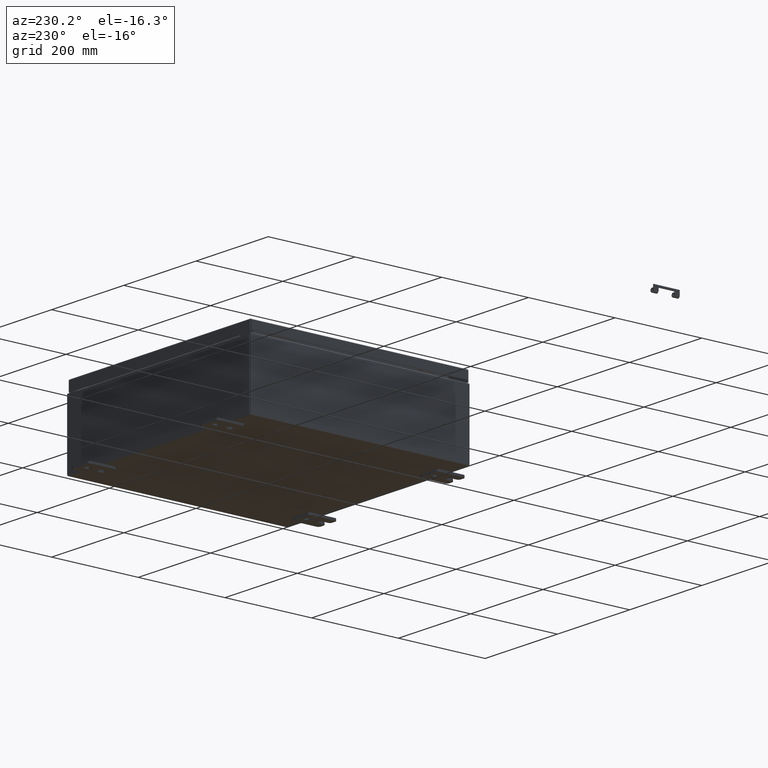
[diagram: clean part render]
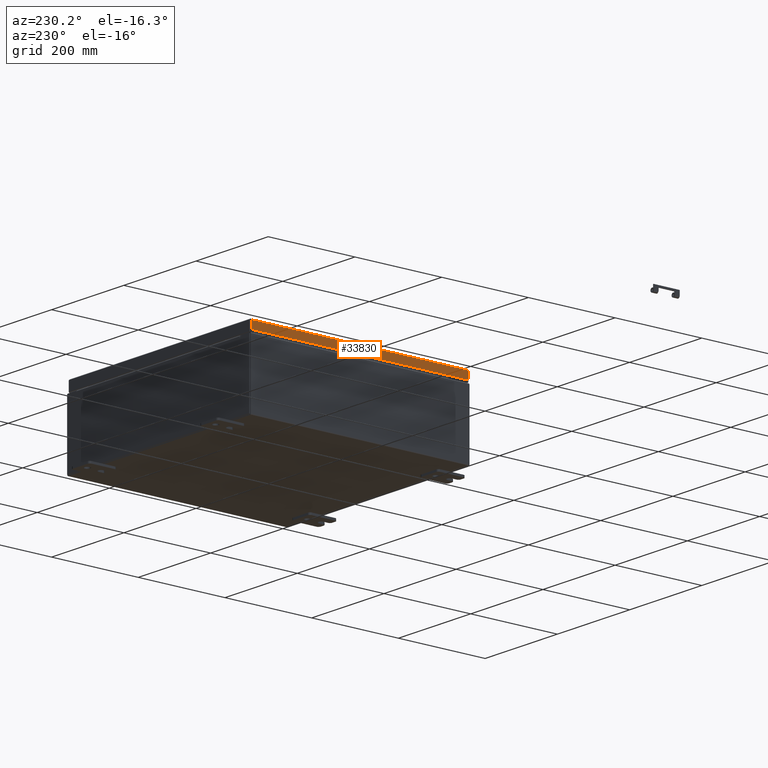
[diagram: same view with one face highlighted and labeled with its STEP entity id]
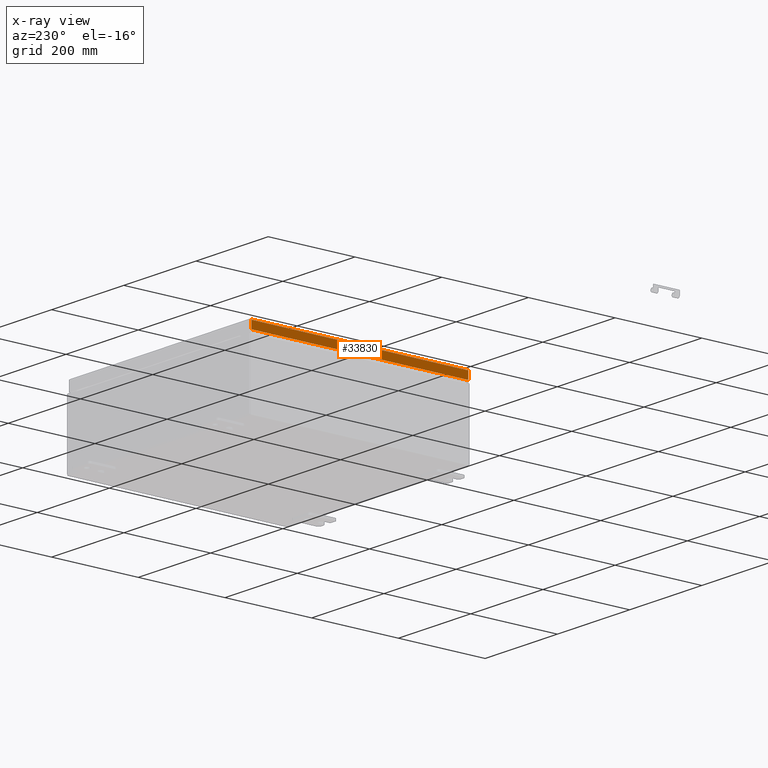
[diagram: x-ray of the same camera — body ghosted, the highlighted face saturated]
A machine part, auxiliary view. The second image highlights one B-rep face of the part: STEP entity #33830.
The next image is the same camera in x-ray: the body ghosted, the highlighted face saturated — about 0% of this face is hidden behind the body in this view.
In plain terms, the highlighted planar face has unit normal (1, 0, -0).
Its self-contained STEP definition (entity closure, byte-faithful):
#1087 = CARTESIAN_POINT ( 'NONE',  ( -9.937500000000005300, 9.848657864376271200, -0.7949999999999972600 ) ) ;
#1203 = EDGE_CURVE ( 'NONE', #19358, #1342, #62817, .T. ) ;
#1342 = VERTEX_POINT ( 'NONE', #14572 ) ;
#3246 = ORIENTED_EDGE ( 'NONE', *, *, #37334, .F. ) ;
#3955 = CARTESIAN_POINT ( 'NONE',  ( -9.937500000000000000, -9.937500000000001800, -0.08769999999999982000 ) ) ;
#4168 = LINE ( 'NONE', #39069, #15599 ) ;
#4607 = ORIENTED_EDGE ( 'NONE', *, *, #50393, .T. ) ;
#6297 = EDGE_CURVE ( 'NONE', #1342, #47197, #10256, .T. ) ;
#7568 = LINE ( 'NONE', #13312, #19049 ) ;
#7908 = AXIS2_PLACEMENT_3D ( 'NONE', #39488, #10054, #44396 ) ;
#10054 = DIRECTION ( 'NONE',  ( 1.000000000000000000, 1.099611771034679500E-016, -6.068244883885633100E-015 ) ) ;
#10256 = LINE ( 'NONE', #37759, #20194 ) ;
#12215 = CARTESIAN_POINT ( 'NONE',  ( -9.937500000000003600, -9.848657864376265900, -0.7949999999999997100 ) ) ;
#12659 = ORIENTED_EDGE ( 'NONE', *, *, #6297, .F. ) ;
#13312 = CARTESIAN_POINT ( 'NONE',  ( -9.937500000000003600, -9.937500000000001800, -0.7949999999999997100 ) ) ;
#14572 = CARTESIAN_POINT ( 'NONE',  ( -9.937500000000000000, -9.848657864376273000, -0.08769999999999977800 ) ) ;
#15599 = VECTOR ( 'NONE', #34555, 39.37007874015748100 ) ;
#18464 = DIRECTION ( 'NONE',  ( 1.099611771034679600E-016, -1.000000000000000000, -4.554220009055657300E-045 ) ) ;
#19049 = VECTOR ( 'NONE', #31826, 39.37007874015748100 ) ;
#19358 = VERTEX_POINT ( 'NONE', #43144 ) ;
#20194 = VECTOR ( 'NONE', #52563, 39.37007874015748100 ) ;
#22235 = FACE_OUTER_BOUND ( 'NONE', #24455, .T. ) ;
#24455 = EDGE_LOOP ( 'NONE', ( #26025, #4607, #3246, #12659 ) ) ;
#25077 = VECTOR ( 'NONE', #18464, 39.37007874015748100 ) ;
#26025 = ORIENTED_EDGE ( 'NONE', *, *, #1203, .F. ) ;
#31826 = DIRECTION ( 'NONE',  ( -1.099611771034672100E-016, 1.000000000000000000, 1.237063242414006300E-016 ) ) ;
#33830 = ADVANCED_FACE ( 'NONE', ( #22235 ), #34561, .F. ) ;
#34555 = DIRECTION ( 'NONE',  ( -6.068244883885633100E-015, 6.982962677686265900E-015, -1.000000000000000000 ) ) ;
#34561 = PLANE ( 'NONE',  #7908 ) ;
#35371 = VERTEX_POINT ( 'NONE', #1087 ) ;
#37334 = EDGE_CURVE ( 'NONE', #47197, #35371, #7568, .T. ) ;
#37759 = CARTESIAN_POINT ( 'NONE',  ( -9.937500000000000000, -9.848657864376271200, -0.07469999999999954500 ) ) ;
#39069 = CARTESIAN_POINT ( 'NONE',  ( -9.937500000000000000, 9.848657864376265900, 1.293368074818658800E-013 ) ) ;
#39488 = CARTESIAN_POINT ( 'NONE',  ( -9.937500000000000000, -1.092739197465712800E-015, 6.056399718962504900E-014 ) ) ;
#43144 = CARTESIAN_POINT ( 'NONE',  ( -9.937500000000001800, 9.848657864376269400, -0.08769999999999982000 ) ) ;
#44396 = DIRECTION ( 'NONE',  ( -6.068244883885633100E-015, 0.0000000000000000000, -1.000000000000000000 ) ) ;
#47197 = VERTEX_POINT ( 'NONE', #12215 ) ;
#50393 = EDGE_CURVE ( 'NONE', #19358, #35371, #4168, .T. ) ;
#52563 = DIRECTION ( 'NONE',  ( -6.068244883885633100E-015, 6.982962677686265900E-015, -1.000000000000000000 ) ) ;
#62817 = LINE ( 'NONE', #3955, #25077 ) ;